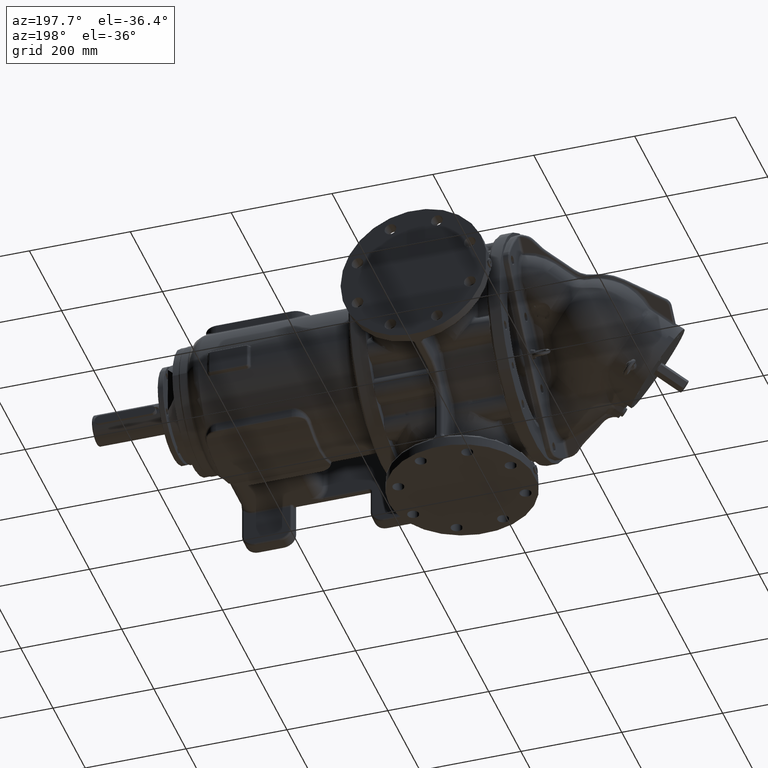
[diagram: clean part render]
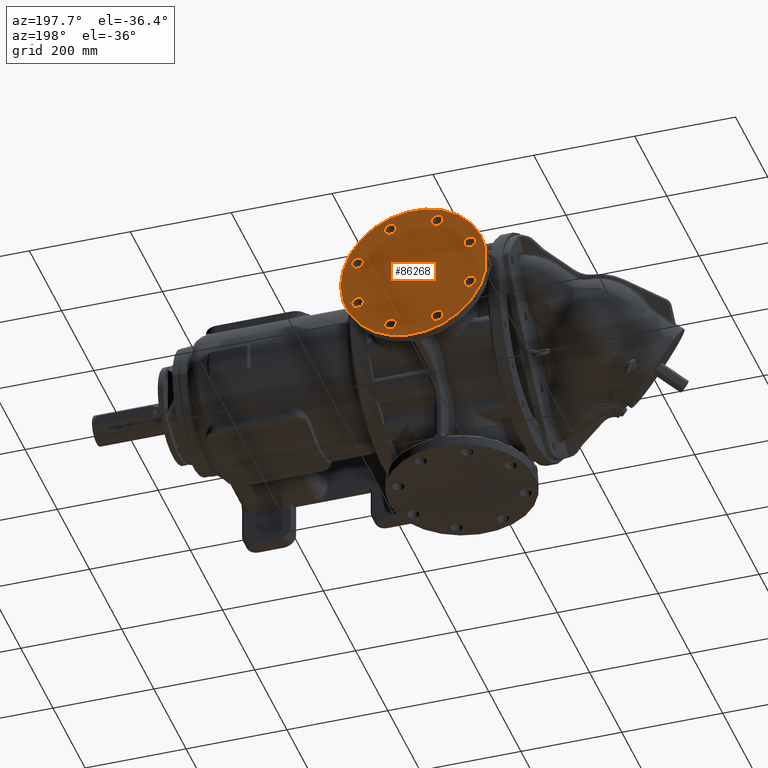
[diagram: same view with one face highlighted and labeled with its STEP entity id]
A machine part, auxiliary view. The second image highlights one B-rep face of the part: STEP entity #86268.
In plain terms, the highlighted planar face has unit normal (0, -1, 0).
Its self-contained STEP definition (entity closure, byte-faithful):
#18105=CARTESIAN_POINT('',(-1.385E2,3.E2,2.17321668E-13));
#18106=DIRECTION('',(0.E0,1.E0,0.E0));
#18107=DIRECTION('',(-9.862068965517E-1,0.E0,1.655172413793E-1));
#18108=AXIS2_PLACEMENT_3D('',#18105,#18106,#18107);
#19227=DIRECTION('',(0.E0,0.E0,1.E0));
#19228=VECTOR('',#19227,4.8E1);
#19229=CARTESIAN_POINT('',(-2.815E2,3.E2,-2.4E1));
#19230=LINE('',#19229,#19228);
#19231=CARTESIAN_POINT('',(-2.717251633239E1,3.E2,4.611335359999E1));
#19232=DIRECTION('',(0.E0,-1.E0,0.E0));
#19233=DIRECTION('',(0.E0,0.E0,1.E0));
#19234=AXIS2_PLACEMENT_3D('',#19231,#19232,#19233);
#19236=CARTESIAN_POINT('',(-2.717251633239E1,3.E2,4.611335359999E1));
#19237=DIRECTION('',(0.E0,-1.E0,0.E0));
#19238=DIRECTION('',(0.E0,0.E0,-1.E0));
#19239=AXIS2_PLACEMENT_3D('',#19236,#19237,#19238);
#19241=CARTESIAN_POINT('',(-9.238664640001E1,3.E2,1.113274836676E2));
#19242=DIRECTION('',(0.E0,-1.E0,0.E0));
#19243=DIRECTION('',(-7.071067811865E-1,0.E0,7.071067811866E-1));
#19244=AXIS2_PLACEMENT_3D('',#19241,#19242,#19243);
#19246=CARTESIAN_POINT('',(-9.238664640001E1,3.E2,1.113274836676E2));
#19247=DIRECTION('',(0.E0,-1.E0,0.E0));
#19248=DIRECTION('',(7.071067811865E-1,0.E0,-7.071067811865E-1));
#19249=AXIS2_PLACEMENT_3D('',#19246,#19247,#19248);
#19251=CARTESIAN_POINT('',(-1.846133536E2,3.E2,1.113274836676E2));
#19252=DIRECTION('',(0.E0,-1.E0,0.E0));
#19253=DIRECTION('',(-1.E0,0.E0,0.E0));
#19254=AXIS2_PLACEMENT_3D('',#19251,#19252,#19253);
#19256=CARTESIAN_POINT('',(-1.846133536E2,3.E2,1.113274836676E2));
#19257=DIRECTION('',(0.E0,-1.E0,0.E0));
#19258=DIRECTION('',(1.E0,0.E0,0.E0));
#19259=AXIS2_PLACEMENT_3D('',#19256,#19257,#19258);
#19261=CARTESIAN_POINT('',(-2.498274836676E2,3.E2,4.611335359999E1));
#19262=DIRECTION('',(0.E0,-1.E0,0.E0));
#19263=DIRECTION('',(-7.071067811865E-1,0.E0,-7.071067811865E-1));
#19264=AXIS2_PLACEMENT_3D('',#19261,#19262,#19263);
#19266=CARTESIAN_POINT('',(-2.498274836676E2,3.E2,4.611335359999E1));
#19267=DIRECTION('',(0.E0,-1.E0,0.E0));
#19268=DIRECTION('',(7.071067811865E-1,0.E0,7.071067811865E-1));
#19269=AXIS2_PLACEMENT_3D('',#19266,#19267,#19268);
#19271=CARTESIAN_POINT('',(-2.498274836676E2,3.E2,-4.611335359999E1));
#19272=DIRECTION('',(0.E0,-1.E0,0.E0));
#19273=DIRECTION('',(0.E0,0.E0,-1.E0));
#19274=AXIS2_PLACEMENT_3D('',#19271,#19272,#19273);
#19276=CARTESIAN_POINT('',(-2.498274836676E2,3.E2,-4.611335359999E1));
#19277=DIRECTION('',(0.E0,-1.E0,0.E0));
#19278=DIRECTION('',(0.E0,0.E0,1.E0));
#19279=AXIS2_PLACEMENT_3D('',#19276,#19277,#19278);
#19281=CARTESIAN_POINT('',(-1.846133536E2,3.E2,-1.113274836676E2));
#19282=DIRECTION('',(0.E0,-1.E0,0.E0));
#19283=DIRECTION('',(7.071067811865E-1,0.E0,-7.071067811865E-1));
#19284=AXIS2_PLACEMENT_3D('',#19281,#19282,#19283);
#19286=CARTESIAN_POINT('',(-1.846133536E2,3.E2,-1.113274836676E2));
#19287=DIRECTION('',(0.E0,-1.E0,0.E0));
#19288=DIRECTION('',(-7.071067811865E-1,0.E0,7.071067811865E-1));
#19289=AXIS2_PLACEMENT_3D('',#19286,#19287,#19288);
#19291=CARTESIAN_POINT('',(-9.238664640001E1,3.E2,-1.113274836676E2));
#19292=DIRECTION('',(0.E0,-1.E0,0.E0));
#19293=DIRECTION('',(1.E0,0.E0,0.E0));
#19294=AXIS2_PLACEMENT_3D('',#19291,#19292,#19293);
#19296=CARTESIAN_POINT('',(-9.238664640001E1,3.E2,-1.113274836676E2));
#19297=DIRECTION('',(0.E0,-1.E0,0.E0));
#19298=DIRECTION('',(-1.E0,0.E0,0.E0));
#19299=AXIS2_PLACEMENT_3D('',#19296,#19297,#19298);
#19301=CARTESIAN_POINT('',(-2.717251633239E1,3.E2,-4.611335359999E1));
#19302=DIRECTION('',(0.E0,-1.E0,0.E0));
#19303=DIRECTION('',(7.071067811865E-1,0.E0,7.071067811866E-1));
#19304=AXIS2_PLACEMENT_3D('',#19301,#19302,#19303);
#19306=CARTESIAN_POINT('',(-2.717251633239E1,3.E2,-4.611335359999E1));
#19307=DIRECTION('',(0.E0,-1.E0,0.E0));
#19308=DIRECTION('',(-7.071067811866E-1,0.E0,-7.071067811865E-1));
#19309=AXIS2_PLACEMENT_3D('',#19306,#19307,#19308);
#47530=CARTESIAN_POINT('',(-2.717251633239E1,3.E2,5.761335359999E1));
#47531=CARTESIAN_POINT('',(-2.717251633239E1,3.E2,3.461335359999E1));
#47532=VERTEX_POINT('',#47530);
#47533=VERTEX_POINT('',#47531);
#47538=CARTESIAN_POINT('',(-1.005183743837E2,3.E2,1.194592116513E2));
#47539=CARTESIAN_POINT('',(-8.425491841636E1,3.E2,1.031957556840E2));
#47540=VERTEX_POINT('',#47538);
#47541=VERTEX_POINT('',#47539);
#47546=CARTESIAN_POINT('',(-1.961133536E2,3.E2,1.113274836676E2));
#47547=CARTESIAN_POINT('',(-1.731133536E2,3.E2,1.113274836676E2));
#47548=VERTEX_POINT('',#47546);
#47549=VERTEX_POINT('',#47547);
#47554=CARTESIAN_POINT('',(-2.579592116513E2,3.E2,3.798162561635E1));
#47555=CARTESIAN_POINT('',(-2.416957556840E2,3.E2,5.424508158364E1));
#47556=VERTEX_POINT('',#47554);
#47557=VERTEX_POINT('',#47555);
#47562=CARTESIAN_POINT('',(-2.498274836676E2,3.E2,-5.761335359999E1));
#47563=CARTESIAN_POINT('',(-2.498274836676E2,3.E2,-3.461335359999E1));
#47564=VERTEX_POINT('',#47562);
#47565=VERTEX_POINT('',#47563);
#47570=CARTESIAN_POINT('',(-1.764816256163E2,3.E2,-1.194592116513E2));
#47571=CARTESIAN_POINT('',(-1.927450815836E2,3.E2,-1.031957556840E2));
#47572=VERTEX_POINT('',#47570);
#47573=VERTEX_POINT('',#47571);
#47578=CARTESIAN_POINT('',(-8.088664640001E1,3.E2,-1.113274836676E2));
#47579=CARTESIAN_POINT('',(-1.038866464E2,3.E2,-1.113274836676E2));
#47580=VERTEX_POINT('',#47578);
#47581=VERTEX_POINT('',#47579);
#47586=CARTESIAN_POINT('',(-1.904078834874E1,3.E2,-3.798162561635E1));
#47587=CARTESIAN_POINT('',(-3.530424431604E1,3.E2,-5.424508158364E1));
#47588=VERTEX_POINT('',#47586);
#47589=VERTEX_POINT('',#47587);
#47654=CARTESIAN_POINT('',(-2.815E2,3.E2,-2.4E1));
#47656=VERTEX_POINT('',#47654);
#47658=CARTESIAN_POINT('',(-2.815E2,3.E2,2.4E1));
#47660=VERTEX_POINT('',#47658);
#86211=CARTESIAN_POINT('',(3.55E1,3.E2,-3.E2));
#86212=DIRECTION('',(0.E0,-1.E0,0.E0));
#86213=DIRECTION('',(0.E0,0.E0,1.E0));
#86214=AXIS2_PLACEMENT_3D('',#86211,#86212,#86213);
#86215=PLANE('',#86214);
#86216=ORIENTED_EDGE('',*,*,#86188,.F.);
#86217=ORIENTED_EDGE('',*,*,#85435,.F.);
#86218=EDGE_LOOP('',(#86216,#86217));
#86219=FACE_OUTER_BOUND('',#86218,.F.);
#86221=ORIENTED_EDGE('',*,*,#86220,.F.);
#86223=ORIENTED_EDGE('',*,*,#86222,.F.);
#86224=EDGE_LOOP('',(#86221,#86223));
#86225=FACE_BOUND('',#86224,.F.);
#86227=ORIENTED_EDGE('',*,*,#86226,.F.);
#86229=ORIENTED_EDGE('',*,*,#86228,.F.);
#86230=EDGE_LOOP('',(#86227,#86229));
#86231=FACE_BOUND('',#86230,.F.);
#86233=ORIENTED_EDGE('',*,*,#86232,.F.);
#86235=ORIENTED_EDGE('',*,*,#86234,.F.);
#86236=EDGE_LOOP('',(#86233,#86235));
#86237=FACE_BOUND('',#86236,.F.);
#86239=ORIENTED_EDGE('',*,*,#86238,.F.);
#86241=ORIENTED_EDGE('',*,*,#86240,.F.);
#86242=EDGE_LOOP('',(#86239,#86241));
#86243=FACE_BOUND('',#86242,.F.);
#86245=ORIENTED_EDGE('',*,*,#86244,.F.);
#86247=ORIENTED_EDGE('',*,*,#86246,.F.);
#86248=EDGE_LOOP('',(#86245,#86247));
#86249=FACE_BOUND('',#86248,.F.);
#86251=ORIENTED_EDGE('',*,*,#86250,.F.);
#86253=ORIENTED_EDGE('',*,*,#86252,.F.);
#86254=EDGE_LOOP('',(#86251,#86253));
#86255=FACE_BOUND('',#86254,.F.);
#86257=ORIENTED_EDGE('',*,*,#86256,.F.);
#86259=ORIENTED_EDGE('',*,*,#86258,.F.);
#86260=EDGE_LOOP('',(#86257,#86259));
#86261=FACE_BOUND('',#86260,.F.);
#86263=ORIENTED_EDGE('',*,*,#86262,.F.);
#86265=ORIENTED_EDGE('',*,*,#86264,.F.);
#86266=EDGE_LOOP('',(#86263,#86265));
#86267=FACE_BOUND('',#86266,.F.);
#86268=ADVANCED_FACE('',(#86219,#86225,#86231,#86237,#86243,#86249,#86255,
#86261,#86267),#86215,.F.);
#18109=CIRCLE('',#18108,1.45E2);
#19235=CIRCLE('',#19234,1.15E1);
#19240=CIRCLE('',#19239,1.15E1);
#19245=CIRCLE('',#19244,1.15E1);
#19250=CIRCLE('',#19249,1.15E1);
#19255=CIRCLE('',#19254,1.15E1);
#19260=CIRCLE('',#19259,1.15E1);
#19265=CIRCLE('',#19264,1.15E1);
#19270=CIRCLE('',#19269,1.15E1);
#19275=CIRCLE('',#19274,1.15E1);
#19280=CIRCLE('',#19279,1.15E1);
#19285=CIRCLE('',#19284,1.15E1);
#19290=CIRCLE('',#19289,1.15E1);
#19295=CIRCLE('',#19294,1.15E1);
#19300=CIRCLE('',#19299,1.15E1);
#19305=CIRCLE('',#19304,1.15E1);
#19310=CIRCLE('',#19309,1.15E1);
#85435=EDGE_CURVE('',#47660,#47656,#18109,.T.);
#86188=EDGE_CURVE('',#47656,#47660,#19230,.T.);
#86220=EDGE_CURVE('',#47532,#47533,#19235,.T.);
#86222=EDGE_CURVE('',#47533,#47532,#19240,.T.);
#86226=EDGE_CURVE('',#47540,#47541,#19245,.T.);
#86228=EDGE_CURVE('',#47541,#47540,#19250,.T.);
#86232=EDGE_CURVE('',#47548,#47549,#19255,.T.);
#86234=EDGE_CURVE('',#47549,#47548,#19260,.T.);
#86238=EDGE_CURVE('',#47556,#47557,#19265,.T.);
#86240=EDGE_CURVE('',#47557,#47556,#19270,.T.);
#86244=EDGE_CURVE('',#47564,#47565,#19275,.T.);
#86246=EDGE_CURVE('',#47565,#47564,#19280,.T.);
#86250=EDGE_CURVE('',#47572,#47573,#19285,.T.);
#86252=EDGE_CURVE('',#47573,#47572,#19290,.T.);
#86256=EDGE_CURVE('',#47580,#47581,#19295,.T.);
#86258=EDGE_CURVE('',#47581,#47580,#19300,.T.);
#86262=EDGE_CURVE('',#47588,#47589,#19305,.T.);
#86264=EDGE_CURVE('',#47589,#47588,#19310,.T.);